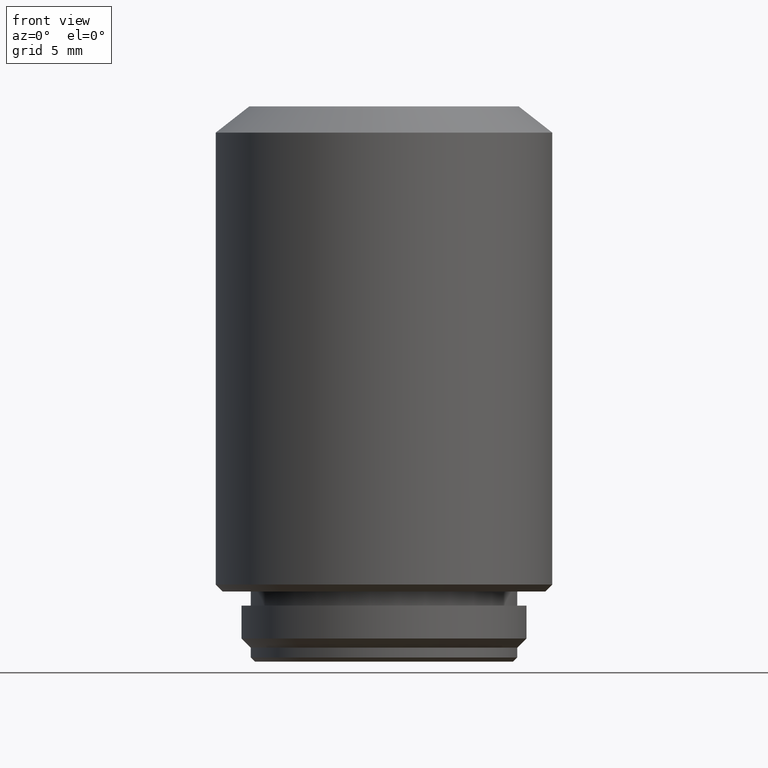
[diagram: clean part render]
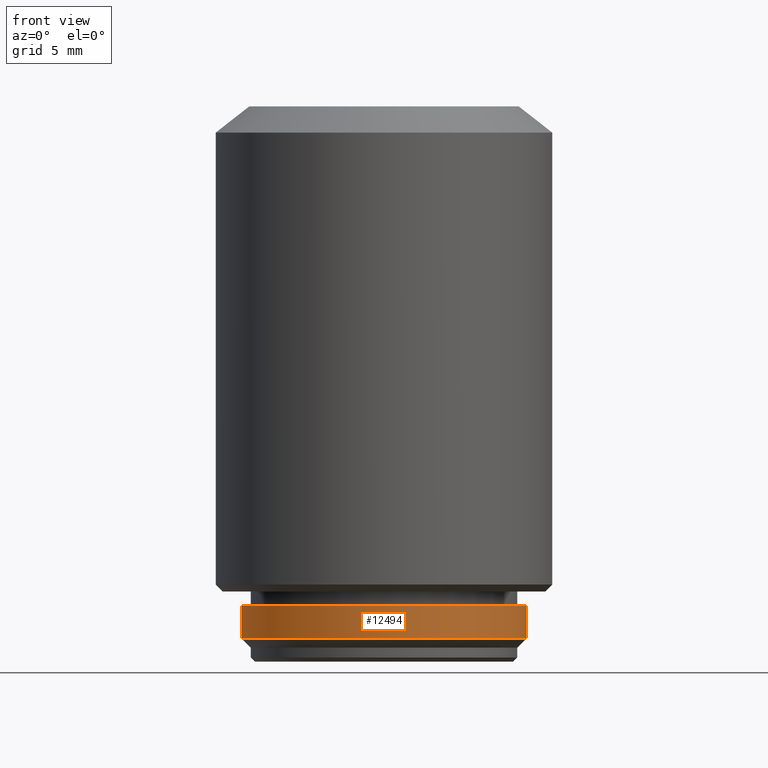
[diagram: same view with one face highlighted and labeled with its STEP entity id]
A machine part, front view. The second image highlights one B-rep face of the part: STEP entity #12494.
In plain terms, the highlighted cylindrical surface (partial cylindrical patch) has radius 10.16 mm, axis along (0, 0, -1).
Its self-contained STEP definition (entity closure, byte-faithful):
#1444 = EDGE_CURVE ( 'NONE', #21229, #6944, #12136, .T. ) ;
#3467 = CYLINDRICAL_SURFACE ( 'NONE', #3503, 10.16000000000000014 ) ;
#3503 = AXIS2_PLACEMENT_3D ( 'NONE', #24456, #7557, #11041 ) ;
#5181 = CARTESIAN_POINT ( 'NONE',  ( -10.16000000000000014, 0.000000000000000000, 4.000000000000000000 ) ) ;
#5931 = ORIENTED_EDGE ( 'NONE', *, *, #8924, .F. ) ;
#6944 = VERTEX_POINT ( 'NONE', #21840 ) ;
#6963 = CARTESIAN_POINT ( 'NONE',  ( 10.16000000000000014, 1.244241147933710864E-15, 4.000000000000000000 ) ) ;
#7557 = DIRECTION ( 'NONE',  ( 0.000000000000000000, 0.000000000000000000, -1.000000000000000000 ) ) ;
#8149 = DIRECTION ( 'NONE',  ( -1.000000000000000000, 0.000000000000000000, 0.000000000000000000 ) ) ;
#8262 = CIRCLE ( 'NONE', #19743, 10.16000000000000014 ) ;
#8924 = EDGE_CURVE ( 'NONE', #20452, #21229, #18837, .T. ) ;
#9922 = CARTESIAN_POINT ( 'NONE',  ( 10.16000000000000014, 1.244241147933710864E-15, 5.000000000000000000 ) ) ;
#10379 = VECTOR ( 'NONE', #17723, 1000.000000000000000 ) ;
#10498 = DIRECTION ( 'NONE',  ( 0.000000000000000000, 0.000000000000000000, 1.000000000000000000 ) ) ;
#10637 = VECTOR ( 'NONE', #21109, 1000.000000000000000 ) ;
#11041 = DIRECTION ( 'NONE',  ( -1.000000000000000000, 0.000000000000000000, 0.000000000000000000 ) ) ;
#11437 = ORIENTED_EDGE ( 'NONE', *, *, #1444, .F. ) ;
#11682 = EDGE_CURVE ( 'NONE', #13448, #6944, #8262, .T. ) ;
#12083 = AXIS2_PLACEMENT_3D ( 'NONE', #19925, #10498, #8149 ) ;
#12136 = LINE ( 'NONE', #9922, #10379 ) ;
#12490 = EDGE_LOOP ( 'NONE', ( #11437, #5931, #20505, #17412 ) ) ;
#12494 = ADVANCED_FACE ( 'NONE', ( #15248 ), #3467, .T. ) ;
#13400 = EDGE_CURVE ( 'NONE', #20452, #13448, #23237, .T. ) ;
#13448 = VERTEX_POINT ( 'NONE', #22658 ) ;
#15248 = FACE_OUTER_BOUND ( 'NONE', #12490, .T. ) ;
#15615 = DIRECTION ( 'NONE',  ( 0.000000000000000000, 0.000000000000000000, 1.000000000000000000 ) ) ;
#17140 = CARTESIAN_POINT ( 'NONE',  ( -10.16000000000000014, 0.000000000000000000, 5.000000000000000000 ) ) ;
#17412 = ORIENTED_EDGE ( 'NONE', *, *, #11682, .T. ) ;
#17463 = CARTESIAN_POINT ( 'NONE',  ( 0.000000000000000000, 0.000000000000000000, 1.649999999999999911 ) ) ;
#17723 = DIRECTION ( 'NONE',  ( 0.000000000000000000, 0.000000000000000000, -1.000000000000000000 ) ) ;
#18837 = CIRCLE ( 'NONE', #12083, 10.16000000000000014 ) ;
#19743 = AXIS2_PLACEMENT_3D ( 'NONE', #17463, #15615, #21323 ) ;
#19925 = CARTESIAN_POINT ( 'NONE',  ( 0.000000000000000000, 0.000000000000000000, 4.000000000000000000 ) ) ;
#20452 = VERTEX_POINT ( 'NONE', #5181 ) ;
#20505 = ORIENTED_EDGE ( 'NONE', *, *, #13400, .T. ) ;
#21109 = DIRECTION ( 'NONE',  ( 0.000000000000000000, 0.000000000000000000, -1.000000000000000000 ) ) ;
#21229 = VERTEX_POINT ( 'NONE', #6963 ) ;
#21323 = DIRECTION ( 'NONE',  ( -1.000000000000000000, 0.000000000000000000, 0.000000000000000000 ) ) ;
#21840 = CARTESIAN_POINT ( 'NONE',  ( 10.16000000000000014, 0.000000000000000000, 1.649999999999999911 ) ) ;
#22658 = CARTESIAN_POINT ( 'NONE',  ( -10.16000000000000014, 1.244241147933710864E-15, 1.649999999999999911 ) ) ;
#23237 = LINE ( 'NONE', #17140, #10637 ) ;
#24456 = CARTESIAN_POINT ( 'NONE',  ( 0.000000000000000000, 0.000000000000000000, 5.000000000000000000 ) ) ;